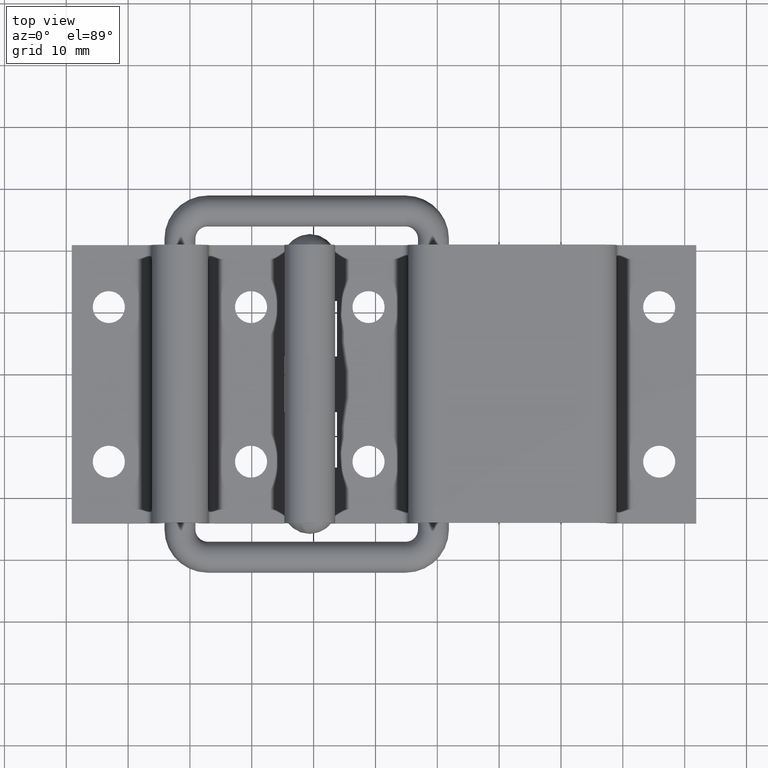
[diagram: clean part render]
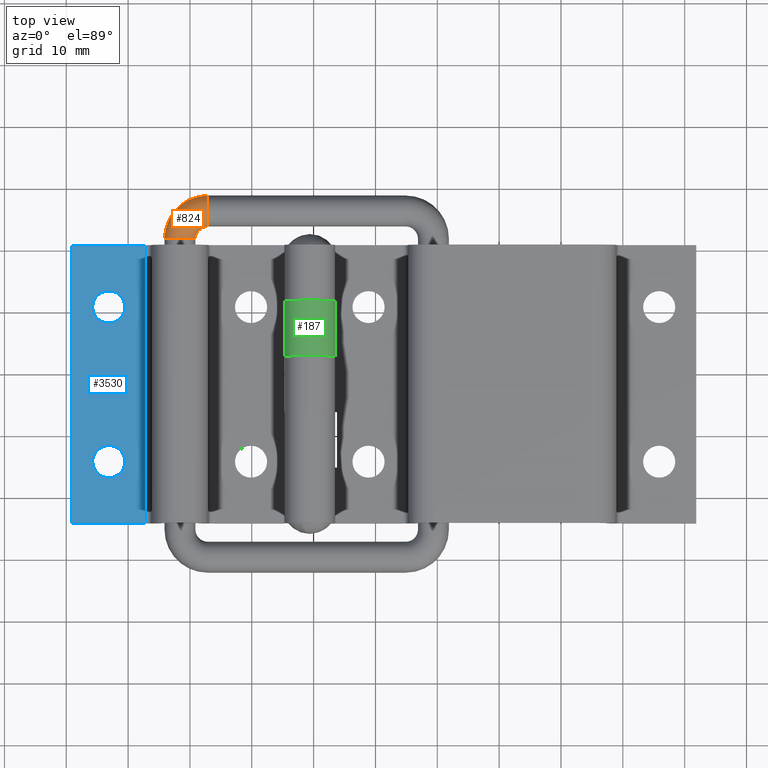
[diagram: same view with three faces highlighted in distinct colors, each labeled with its STEP entity id]
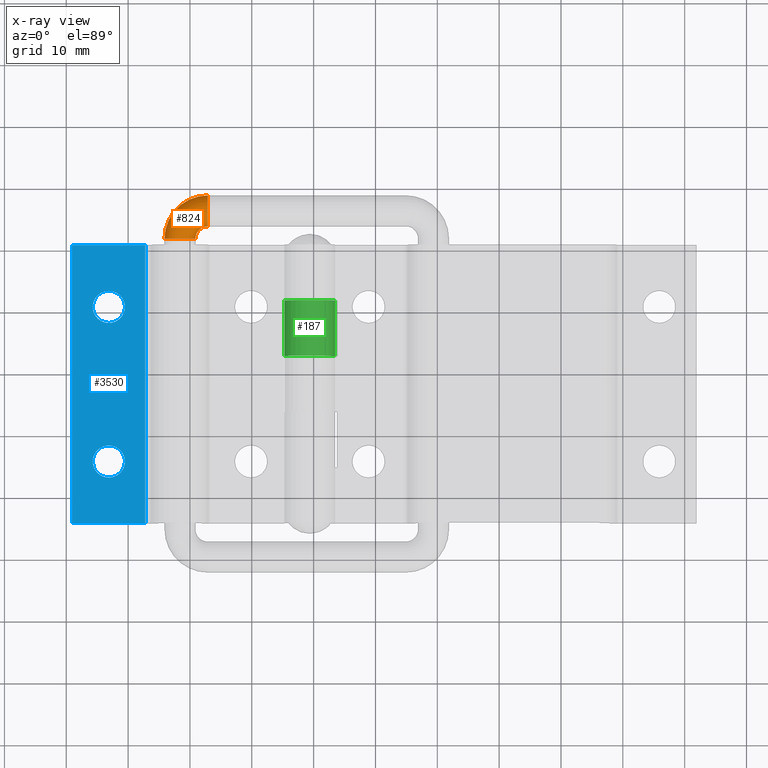
[diagram: x-ray of the same camera — body ghosted, the three highlighted faces saturated]
A machine part, top view with three faces highlighted in distinct colors.
The next image is the same camera in x-ray (body ghosted, the three faces saturated) — at least one of them is partly hidden behind the body in this view.
Their STEP definitions:

[orange] entity #824 — the highlighted toroidal blend (fillet) surface has major radius 4.5 mm and minor (blend) radius 2.5 mm.
#4 = AXIS2_PLACEMENT_3D ( 'NONE', #2863, #868, #3188 ) ;
#44 = VERTEX_POINT ( 'NONE', #3433 ) ;
#334 = CARTESIAN_POINT ( 'NONE',  ( -16.50000000000000000, 1.599998000000000000, 46.00000000000000000 ) ) ;
#372 = AXIS2_PLACEMENT_3D ( 'NONE', #1360, #3674, #1697 ) ;
#558 = CARTESIAN_POINT ( 'NONE',  ( -23.50000000000000000, 1.599998000000000300, 46.00000000000000000 ) ) ;
#706 = DIRECTION ( 'NONE',  ( 0.0000000000000000000, 1.000000000000000000, 0.0000000000000000000 ) ) ;
#824 = ADVANCED_FACE ( 'NONE', ( #1168 ), #2951, .T. ) ;
#868 = DIRECTION ( 'NONE',  ( 0.0000000000000000000, 1.000000000000000000, 0.0000000000000000000 ) ) ;
#1082 = ORIENTED_EDGE ( 'NONE', *, *, #1692, .F. ) ;
#1168 = FACE_OUTER_BOUND ( 'NONE', #4123, .T. ) ;
#1360 = CARTESIAN_POINT ( 'NONE',  ( -21.00000000000000000, 1.599998000000000000, 46.00000000000000000 ) ) ;
#1482 = ORIENTED_EDGE ( 'NONE', *, *, #4060, .T. ) ;
#1655 = CARTESIAN_POINT ( 'NONE',  ( -16.49999999999975100, 1.599998000000000000, 50.50000000000000000 ) ) ;
#1692 = EDGE_CURVE ( 'NONE', #2795, #44, #2217, .T. ) ;
#1697 = DIRECTION ( 'NONE',  ( -1.000000000000000000, 0.0000000000000000000, 0.0000000000000000000 ) ) ;
#1712 = AXIS2_PLACEMENT_3D ( 'NONE', #1655, #3969, #1994 ) ;
#1994 = DIRECTION ( 'NONE',  ( 0.0000000000000000000, 0.0000000000000000000, 1.000000000000000000 ) ) ;
#2023 = DIRECTION ( 'NONE',  ( 0.0000000000000000000, 0.0000000000000000000, 1.000000000000000000 ) ) ;
#2208 = CARTESIAN_POINT ( 'NONE',  ( -16.49999999999975100, 1.599998000000000000, 48.00000000000000000 ) ) ;
#2217 = CIRCLE ( 'NONE', #4, 6.999999999999950300 ) ;
#2423 = ORIENTED_EDGE ( 'NONE', *, *, #2655, .F. ) ;
#2435 = AXIS2_PLACEMENT_3D ( 'NONE', #334, #2999, #2023 ) ;
#2557 = CIRCLE ( 'NONE', #372, 2.499999999999998700 ) ;
#2655 = EDGE_CURVE ( 'NONE', #44, #3810, #4047, .T. ) ;
#2675 = CIRCLE ( 'NONE', #2962, 1.999999999999946300 ) ;
#2712 = CARTESIAN_POINT ( 'NONE',  ( -16.50000000000000000, 1.599997999999999800, 46.00000000000000000 ) ) ;
#2795 = VERTEX_POINT ( 'NONE', #558 ) ;
#2863 = CARTESIAN_POINT ( 'NONE',  ( -16.50000000000000000, 1.599998000000000000, 46.00000000000000000 ) ) ;
#2951 = TOROIDAL_SURFACE ( 'NONE', #2435, 4.499999999999949400, 2.500000000000000000 ) ;
#2962 = AXIS2_PLACEMENT_3D ( 'NONE', #2712, #706, #3035 ) ;
#2999 = DIRECTION ( 'NONE',  ( 0.0000000000000000000, 1.000000000000000000, 0.0000000000000000000 ) ) ;
#3035 = DIRECTION ( 'NONE',  ( 0.0000000000000000000, 0.0000000000000000000, 1.000000000000000000 ) ) ;
#3188 = DIRECTION ( 'NONE',  ( 0.0000000000000000000, 0.0000000000000000000, 1.000000000000000000 ) ) ;
#3433 = CARTESIAN_POINT ( 'NONE',  ( -16.49999999999975100, 1.599998000000000300, 53.00000000000000700 ) ) ;
#3539 = EDGE_CURVE ( 'NONE', #2795, #4241, #2557, .T. ) ;
#3674 = DIRECTION ( 'NONE',  ( -4.818676322157799500E-017, -0.0000000000000000000, 1.000000000000000000 ) ) ;
#3810 = VERTEX_POINT ( 'NONE', #2208 ) ;
#3857 = CARTESIAN_POINT ( 'NONE',  ( -18.50000000000000400, 1.599998000000000000, 46.00000000000000000 ) ) ;
#3969 = DIRECTION ( 'NONE',  ( 1.000000000000000000, -0.0000000000000000000, 4.818676322157799500E-017 ) ) ;
#4030 = ORIENTED_EDGE ( 'NONE', *, *, #3539, .T. ) ;
#4047 = CIRCLE ( 'NONE', #1712, 2.500000000000002200 ) ;
#4060 = EDGE_CURVE ( 'NONE', #4241, #3810, #2675, .T. ) ;
#4123 = EDGE_LOOP ( 'NONE', ( #1082, #4030, #1482, #2423 ) ) ;
#4241 = VERTEX_POINT ( 'NONE', #3857 ) ;

[blue] entity #3530 — the highlighted planar face has unit normal (0, 0, -1).
#83 = LINE ( 'NONE', #1345, #3408 ) ;
#322 = CARTESIAN_POINT ( 'NONE',  ( -38.50000000000000000, 2.500000000000000000, 1000.000000000000000 ) ) ;
#335 = DIRECTION ( 'NONE',  ( 0.0000000000000000000, 0.0000000000000000000, 1.000000000000000000 ) ) ;
#373 = ORIENTED_EDGE ( 'NONE', *, *, #1995, .F. ) ;
#418 = VECTOR ( 'NONE', #612, 1000.000000000000000 ) ;
#518 = ORIENTED_EDGE ( 'NONE', *, *, #1062, .T. ) ;
#578 = AXIS2_PLACEMENT_3D ( 'NONE', #322, #2986, #335 ) ;
#609 = EDGE_CURVE ( 'NONE', #1351, #2735, #2782, .T. ) ;
#612 = DIRECTION ( 'NONE',  ( 0.0000000000000000000, 0.0000000000000000000, -1.000000000000000000 ) ) ;
#623 = VECTOR ( 'NONE', #2206, 1000.000000000000000 ) ;
#691 = VERTEX_POINT ( 'NONE', #2211 ) ;
#764 = CIRCLE ( 'NONE', #2136, 2.600000000000000100 ) ;
#843 = CARTESIAN_POINT ( 'NONE',  ( -32.50000000000000000, 2.499999999999944900, 7.400000000000000400 ) ) ;
#869 = CARTESIAN_POINT ( 'NONE',  ( -38.50000000000000000, 2.500000000000000000, 0.0000000000000000000 ) ) ;
#884 = FACE_BOUND ( 'NONE', #2985, .T. ) ;
#893 = DIRECTION ( 'NONE',  ( -0.0000000000000000000, -1.000000000000000000, -0.0000000000000000000 ) ) ;
#926 = CARTESIAN_POINT ( 'NONE',  ( -32.50000000000000000, 2.499999999999944900, 12.60000000000000000 ) ) ;
#985 = DIRECTION ( 'NONE',  ( 0.0000000000000000000, 0.0000000000000000000, -1.000000000000000000 ) ) ;
#1062 = EDGE_CURVE ( 'NONE', #2458, #691, #3091, .T. ) ;
#1080 = CARTESIAN_POINT ( 'NONE',  ( -38.50000000000000000, 2.500000000000000000, 45.00000000000000000 ) ) ;
#1144 = ORIENTED_EDGE ( 'NONE', *, *, #2923, .F. ) ;
#1326 = LINE ( 'NONE', #2296, #418 ) ;
#1345 = CARTESIAN_POINT ( 'NONE',  ( -26.59999799999999900, 2.500000000000000000, 1000.000000000000000 ) ) ;
#1351 = VERTEX_POINT ( 'NONE', #926 ) ;
#1381 = CARTESIAN_POINT ( 'NONE',  ( -32.50000000000000000, 2.499999999999944900, 37.60000000000000100 ) ) ;
#1548 = CIRCLE ( 'NONE', #3416, 2.599999999999998300 ) ;
#1589 = EDGE_CURVE ( 'NONE', #2186, #3248, #1548, .T. ) ;
#1684 = DIRECTION ( 'NONE',  ( -0.0000000000000000000, -1.000000000000000000, -0.0000000000000000000 ) ) ;
#1689 = ORIENTED_EDGE ( 'NONE', *, *, #3889, .T. ) ;
#1732 = ORIENTED_EDGE ( 'NONE', *, *, #609, .F. ) ;
#1831 = EDGE_LOOP ( 'NONE', ( #3712, #4100 ) ) ;
#1841 = CARTESIAN_POINT ( 'NONE',  ( -32.50000000000000000, 2.499999999999944900, 35.00000000000000000 ) ) ;
#1917 = CARTESIAN_POINT ( 'NONE',  ( -32.50000000000000000, 2.499999999999944900, 32.40000000000000600 ) ) ;
#1930 = CARTESIAN_POINT ( 'NONE',  ( -32.50000000000000000, 2.499999999999944900, 10.00000000000000000 ) ) ;
#1995 = EDGE_CURVE ( 'NONE', #2735, #1351, #764, .T. ) ;
#2136 = AXIS2_PLACEMENT_3D ( 'NONE', #1930, #4227, #2247 ) ;
#2163 = DIRECTION ( 'NONE',  ( 0.0000000000000000000, 0.0000000000000000000, 1.000000000000000000 ) ) ;
#2186 = VERTEX_POINT ( 'NONE', #1381 ) ;
#2206 = DIRECTION ( 'NONE',  ( 1.000000000000000000, -0.0000000000000000000, -0.0000000000000000000 ) ) ;
#2211 = CARTESIAN_POINT ( 'NONE',  ( -26.59999799999999900, 2.500000000000000000, 0.0000000000000000000 ) ) ;
#2232 = DIRECTION ( 'NONE',  ( 0.0000000000000000000, 0.0000000000000000000, 1.000000000000000000 ) ) ;
#2247 = DIRECTION ( 'NONE',  ( 0.0000000000000000000, 0.0000000000000000000, 1.000000000000000000 ) ) ;
#2296 = CARTESIAN_POINT ( 'NONE',  ( -38.50000000000000000, 2.500000000000000000, 1000.000000000000000 ) ) ;
#2458 = VERTEX_POINT ( 'NONE', #869 ) ;
#2513 = EDGE_LOOP ( 'NONE', ( #518, #1144, #2895, #1689 ) ) ;
#2735 = VERTEX_POINT ( 'NONE', #843 ) ;
#2782 = CIRCLE ( 'NONE', #3643, 2.600000000000000100 ) ;
#2891 = CARTESIAN_POINT ( 'NONE',  ( -32.50000000000000000, 2.499999999999944900, 10.00000000000000000 ) ) ;
#2895 = ORIENTED_EDGE ( 'NONE', *, *, #4208, .F. ) ;
#2922 = EDGE_CURVE ( 'NONE', #3248, #2186, #3635, .T. ) ;
#2923 = EDGE_CURVE ( 'NONE', #3299, #691, #83, .T. ) ;
#2975 = DIRECTION ( 'NONE',  ( 1.000000000000000000, -0.0000000000000000000, -0.0000000000000000000 ) ) ;
#2985 = EDGE_LOOP ( 'NONE', ( #1732, #373 ) ) ;
#2986 = DIRECTION ( 'NONE',  ( 0.0000000000000000000, 1.000000000000000000, 0.0000000000000000000 ) ) ;
#3091 = LINE ( 'NONE', #3650, #3505 ) ;
#3142 = AXIS2_PLACEMENT_3D ( 'NONE', #3664, #1684, #3991 ) ;
#3158 = LINE ( 'NONE', #4191, #623 ) ;
#3248 = VERTEX_POINT ( 'NONE', #1917 ) ;
#3299 = VERTEX_POINT ( 'NONE', #4236 ) ;
#3408 = VECTOR ( 'NONE', #985, 1000.000000000000000 ) ;
#3416 = AXIS2_PLACEMENT_3D ( 'NONE', #1841, #4147, #2163 ) ;
#3429 = FACE_BOUND ( 'NONE', #1831, .T. ) ;
#3505 = VECTOR ( 'NONE', #2975, 1000.000000000000000 ) ;
#3530 = ADVANCED_FACE ( 'NONE', ( #884, #3537, #3429 ), #3988, .F. ) ;
#3537 = FACE_OUTER_BOUND ( 'NONE', #2513, .T. ) ;
#3635 = CIRCLE ( 'NONE', #3142, 2.599999999999998300 ) ;
#3643 = AXIS2_PLACEMENT_3D ( 'NONE', #2891, #893, #2232 ) ;
#3650 = CARTESIAN_POINT ( 'NONE',  ( 0.0000000000000000000, 2.500000000000000000, 0.0000000000000000000 ) ) ;
#3664 = CARTESIAN_POINT ( 'NONE',  ( -32.50000000000000000, 2.499999999999944900, 35.00000000000000000 ) ) ;
#3712 = ORIENTED_EDGE ( 'NONE', *, *, #1589, .F. ) ;
#3738 = VERTEX_POINT ( 'NONE', #1080 ) ;
#3889 = EDGE_CURVE ( 'NONE', #3738, #2458, #1326, .T. ) ;
#3988 = PLANE ( 'NONE',  #578 ) ;
#3991 = DIRECTION ( 'NONE',  ( 0.0000000000000000000, 0.0000000000000000000, 1.000000000000000000 ) ) ;
#4100 = ORIENTED_EDGE ( 'NONE', *, *, #2922, .F. ) ;
#4147 = DIRECTION ( 'NONE',  ( -0.0000000000000000000, -1.000000000000000000, -0.0000000000000000000 ) ) ;
#4191 = CARTESIAN_POINT ( 'NONE',  ( 0.0000000000000000000, 2.500000000000000000, 45.00000000000000000 ) ) ;
#4208 = EDGE_CURVE ( 'NONE', #3738, #3299, #3158, .T. ) ;
#4227 = DIRECTION ( 'NONE',  ( -0.0000000000000000000, -1.000000000000000000, -0.0000000000000000000 ) ) ;
#4236 = CARTESIAN_POINT ( 'NONE',  ( -26.59999799999999900, 2.500000000000000000, 45.00000000000000000 ) ) ;

[green] entity #187 — the highlighted cylindrical surface (edge-blend (fillet) strip) has radius 4.1 mm, axis along (0, -1, -0).
#45 = AXIS2_PLACEMENT_3D ( 'NONE', #2575, #576, #2908 ) ;
#72 = ORIENTED_EDGE ( 'NONE', *, *, #2613, .F. ) ;
#187 = ADVANCED_FACE ( 'NONE', ( #2818 ), #1843, .T. ) ;
#323 = ORIENTED_EDGE ( 'NONE', *, *, #2731, .T. ) ;
#430 = VERTEX_POINT ( 'NONE', #1700 ) ;
#576 = DIRECTION ( 'NONE',  ( -0.0000000000000000000, -0.0000000000000000000, -1.000000000000000000 ) ) ;
#597 = VECTOR ( 'NONE', #1642, 1000.000000000000000 ) ;
#602 = CIRCLE ( 'NONE', #45, 4.100000000000000500 ) ;
#615 = CARTESIAN_POINT ( 'NONE',  ( 4.100000000000000500, 5.021051876504148400E-016, 1000.000000000000000 ) ) ;
#754 = CIRCLE ( 'NONE', #2025, 4.100000000000000500 ) ;
#940 = CARTESIAN_POINT ( 'NONE',  ( 0.0000000000000000000, 0.0000000000000000000, 27.00000000000000000 ) ) ;
#1005 = DIRECTION ( 'NONE',  ( 0.0000000000000000000, 0.0000000000000000000, -1.000000000000000000 ) ) ;
#1140 = AXIS2_PLACEMENT_3D ( 'NONE', #2335, #1005, #3355 ) ;
#1270 = ORIENTED_EDGE ( 'NONE', *, *, #2797, .T. ) ;
#1290 = DIRECTION ( 'NONE',  ( -1.000000000000000000, 0.0000000000000000000, 0.0000000000000000000 ) ) ;
#1491 = LINE ( 'NONE', #615, #597 ) ;
#1516 = VERTEX_POINT ( 'NONE', #3906 ) ;
#1642 = DIRECTION ( 'NONE',  ( 0.0000000000000000000, 0.0000000000000000000, -1.000000000000000000 ) ) ;
#1700 = CARTESIAN_POINT ( 'NONE',  ( -4.100000000000000500, 0.0000000000000000000, 27.00000000000000000 ) ) ;
#1843 = CYLINDRICAL_SURFACE ( 'NONE', #1140, 4.100000000000000500 ) ;
#2025 = AXIS2_PLACEMENT_3D ( 'NONE', #940, #3274, #1290 ) ;
#2318 = EDGE_LOOP ( 'NONE', ( #72, #1270, #323, #3059 ) ) ;
#2335 = CARTESIAN_POINT ( 'NONE',  ( 0.0000000000000000000, 0.0000000000000000000, 1000.000000000000000 ) ) ;
#2472 = VECTOR ( 'NONE', #3829, 1000.000000000000000 ) ;
#2575 = CARTESIAN_POINT ( 'NONE',  ( 0.0000000000000000000, 0.0000000000000000000, 36.00000000000000000 ) ) ;
#2613 = EDGE_CURVE ( 'NONE', #1516, #3249, #1491, .T. ) ;
#2729 = CARTESIAN_POINT ( 'NONE',  ( -4.100000000000000500, 0.0000000000000000000, 36.00000000000000000 ) ) ;
#2731 = EDGE_CURVE ( 'NONE', #3694, #430, #3370, .T. ) ;
#2797 = EDGE_CURVE ( 'NONE', #1516, #3694, #602, .T. ) ;
#2818 = FACE_OUTER_BOUND ( 'NONE', #2318, .T. ) ;
#2908 = DIRECTION ( 'NONE',  ( 1.000000000000000000, 0.0000000000000000000, 0.0000000000000000000 ) ) ;
#3059 = ORIENTED_EDGE ( 'NONE', *, *, #3471, .T. ) ;
#3249 = VERTEX_POINT ( 'NONE', #4222 ) ;
#3274 = DIRECTION ( 'NONE',  ( -0.0000000000000000000, -0.0000000000000000000, 1.000000000000000000 ) ) ;
#3355 = DIRECTION ( 'NONE',  ( -1.000000000000000000, 0.0000000000000000000, 0.0000000000000000000 ) ) ;
#3370 = LINE ( 'NONE', #3490, #2472 ) ;
#3471 = EDGE_CURVE ( 'NONE', #430, #3249, #754, .T. ) ;
#3490 = CARTESIAN_POINT ( 'NONE',  ( -4.100000000000000500, 0.0000000000000000000, 1000.000000000000000 ) ) ;
#3694 = VERTEX_POINT ( 'NONE', #2729 ) ;
#3829 = DIRECTION ( 'NONE',  ( 0.0000000000000000000, 0.0000000000000000000, -1.000000000000000000 ) ) ;
#3906 = CARTESIAN_POINT ( 'NONE',  ( 4.100000000000000500, 5.021051876504148400E-016, 36.00000000000000000 ) ) ;
#4222 = CARTESIAN_POINT ( 'NONE',  ( 4.100000000000000500, 5.021051876504148400E-016, 27.00000000000000000 ) ) ;